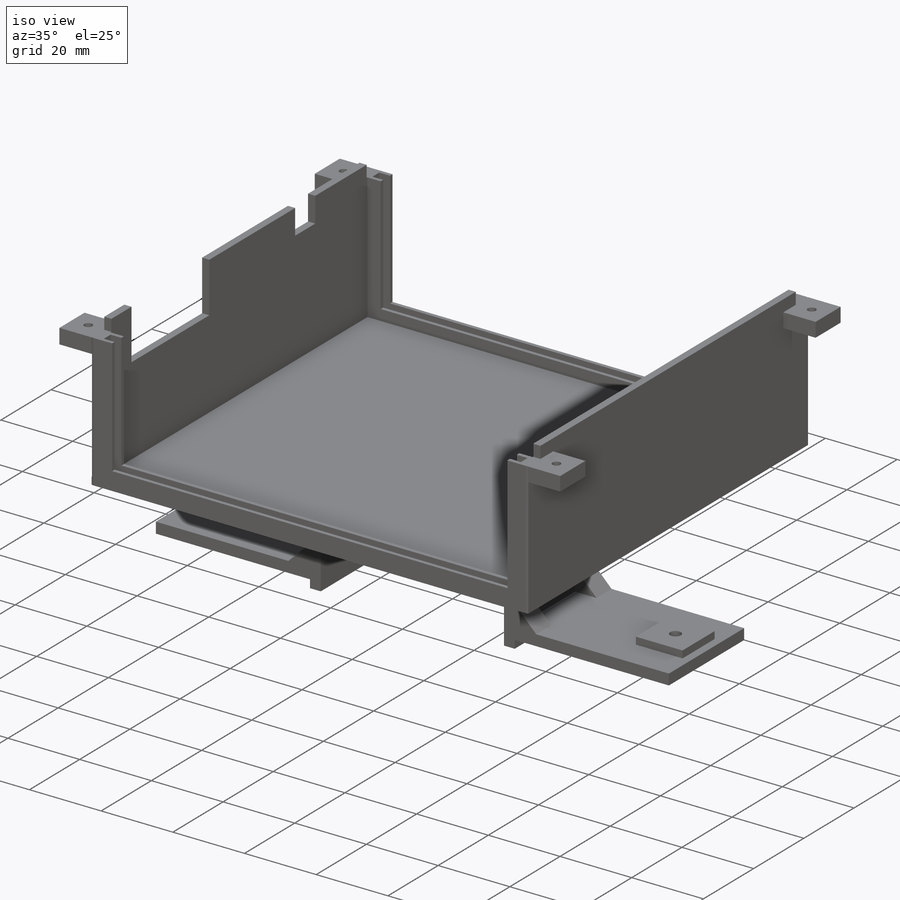
[diagram: iso view]
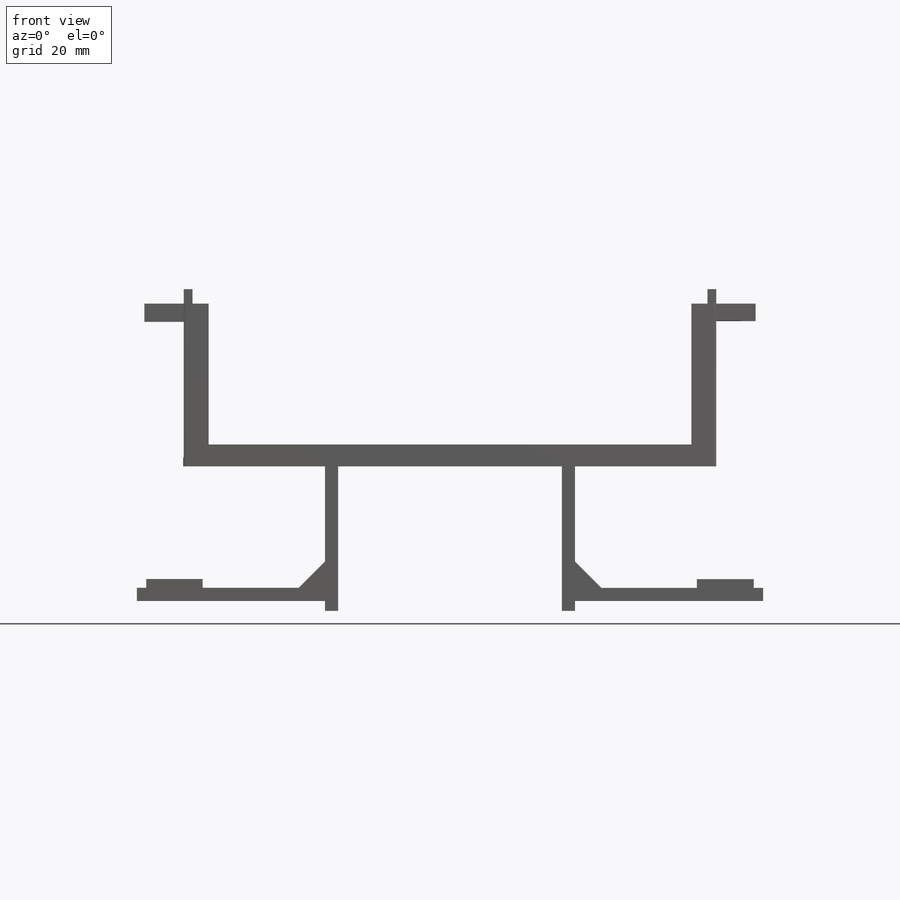
[diagram: front view]
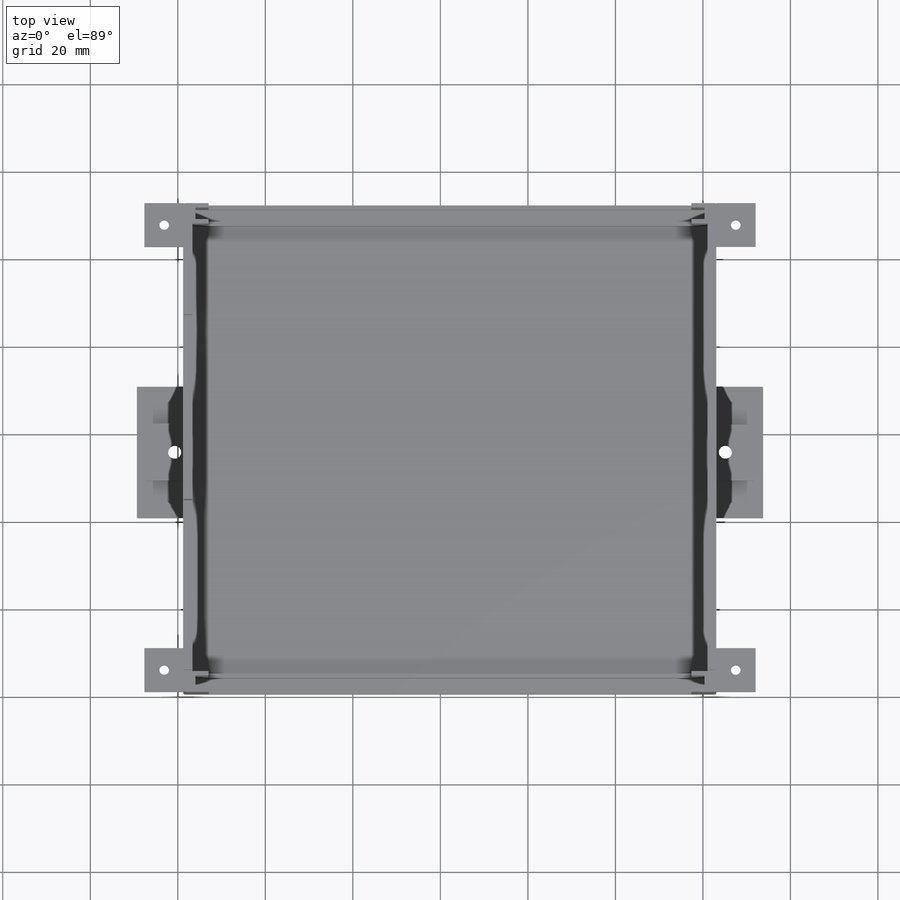
[diagram: top view]
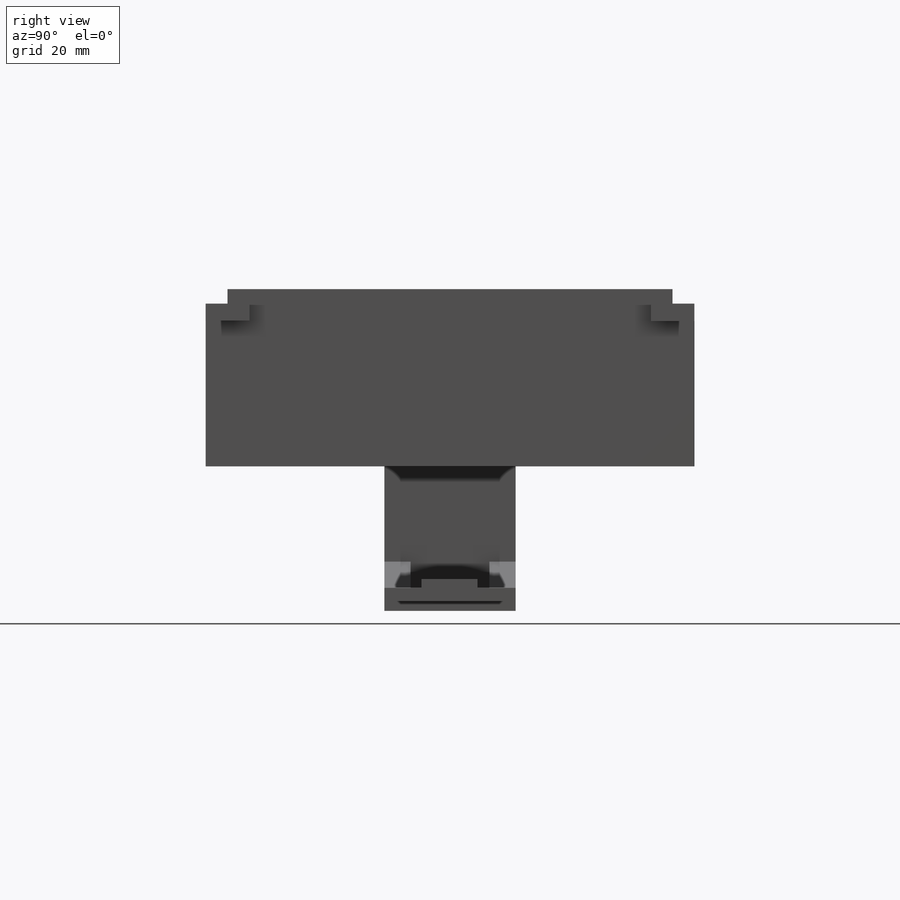
[diagram: right view]
SOLIDWORKS PART (.sldprt)
format: sldprt  version: not decoded by parser v0  size: 990,208 bytes
history: native  units: mm
features: sketch x38, extrude x19, cut_extrude x19, material x1, fillet x1 (+12 scaffold rows collapsed)
feature tree (90):
  scaffold x12  (default folders/planes/origin — collapsed)
  material  "Material <not specified>"
  sketch  "Sketch1"  dims[D1=124.4mm D2=111.7mm]
  extrude  "Boss-Extrude1"  Depth=2mm
  sketch  "Sketch2"  dims[c1.D1=2.0mm c1.D2=2.0mm c2.D1=2.0mm c2.D2=5.0mm c2.D3=1.35mm c2.D4=5.0mm c2.D5=1.35mm c2.D6=2.0mm c2.D7=5.0mm c2.D8=5.0mm c2.D9=1.0mm]
  extrude  "Boss-Extrude2"  Depth=38.5mm
  sketch  "Sketch3"  dims[D1=4.7mm D2=1.35mm D3=1.35mm]
  extrude  "Boss-Extrude3"  Depth=3mm
  sketch  "Sketch5"  dims[c1.D1=0.5mm c1.D2=0.5mm c1.D3=2.1mm c2.D2=2.5mm c2.D4=0.5mm c2.D5=1.0mm c2.D6=~2.453846mm c3.D2=~2.453846mm c4.D2=~168.973391deg c5.D2=0.0mm c5.D4=0.5mm c5.D1=1.0mm c5.D3=0.3mm c5.D6=0.5mm c6.D3=3.7mm c6.D4=2.0mm c6.D2=3.7mm c7.D4=1.0mm c7.D2=2.7mm c7.D3=2.7mm c8.D4=2.7mm c8.D5=2.7mm c8.D6=2.7mm c8.D7=1.0mm c8.D8=1.0mm c8.D9=1.0mm]
  cut_extrude  "Cut-Extrude8"  Depth=3mm
  sketch  "Sketch14"  dims[D1=4.7mm D2=1.35mm D3=1.35mm]
  extrude  "Boss-Extrude6"  Depth=3mm
  sketch  "Sketch15"  dims[c1.D1=2.7mm c1.D2=1.0mm c1.D3=3.7mm c2.D2=3.7mm c2.D4=1.0mm c3.D2=2.7mm c3.D3=2.7mm c3.D4=1.0mm c3.D5=0.5mm]
  cut_extrude  "Cut-Extrude14"  Depth=3mm
  sketch  "Sketch18"
  extrude  "Boss-Extrude7"  Depth=35.2mm
  sketch  "Sketch19"  dims[D1=5.7mm D2=5.7mm D3=5.7mm D4=5.7mm]
  extrude  "Boss-Extrude8"  Depth=32.2mm
  sketch  "Sketch20"  dims[D1=2.7mm]
  cut_extrude  "Cut-Extrude15"  Depth=3mm
  sketch  "Sketch21"  dims[D1=2.7mm]
  cut_extrude  "Cut-Extrude16"  Depth=3mm
  sketch  "Sketch24"  dims[D1=2.7mm]
  cut_extrude  "Cut-Extrude18"  Depth=3mm
  sketch  "Sketch25"  dims[D1=2.7mm]
  cut_extrude  "Cut-Extrude19"  Depth=3mm
  sketch  "Sketch30"  dims[c1.D1=31.0mm c1.D2=8.2mm c1.D3=0.0mm c2.D2=13.0mm c2.D4=14.0mm c2.D5=25.5mm c2.D6=8.0mm c2.D7=4.0mm c2.D8=3.0mm c2.D9=6.25mm c2.D10=0.775mm c2.D11=0.975mm c2.D12=0.775mm c3.D7=7.0mm]
  cut_extrude  "Cut-Extrude23"  Depth=2mm
  sketch  "Sketch31"  dims[D1=6.0mm D2=6.0mm]
  extrude  "Boss-Extrude9"  Depth=1.35mm
  fillet  "Fillet1"  Radius=2mm
  sketch  "Sketch33"  dims[D1=3.0mm]
  extrude  "Boss-Extrude11"  Depth=1.35mm
  sketch  "Sketch43"
  cut_extrude  "Cut-Extrude25"  [1 undecoded]
  sketch  "Sketch47"
  extrude  "Boss-Extrude22"  Depth=38mm
  sketch  "Sketch49"
  cut_extrude  "Cut-Extrude30"  Depth=38mm
  sketch  "Sketch51"
  cut_extrude  "Cut-Extrude33"  [1 undecoded]
  sketch  "Sketch54"  dims[D1=10.0mm D2=4.0mm D3=10.0mm D4=4.0mm]
  extrude  "Boss-Extrude23"  Depth=9mm
  sketch  "Sketch55"  dims[D1=10.0mm D2=4.0mm D3=10.0mm D4=4.0mm]
  extrude  "Boss-Extrude24"  Depth=9mm
  sketch  "Sketch56"  dims[D9=~0.874324mm D1=5.0mm D2=5.0mm D3=5.0mm D4=5.0mm D5=4.55mm D6=4.55mm D7=4.55mm D8=4.55mm]
  cut_extrude  "Cut-Extrude34"  Depth=10mm
  sketch  "Sketch57"  dims[D4=~3.134946mm D1=4.0mm D2=5.0mm D3=5.0mm]
  cut_extrude  "Cut-Extrude35"  [1 undecoded]
  sketch  "Sketch58"  dims[D1=2.25mm D2=2.25mm D3=3.0mm D4=3.0mm]
  extrude  "Boss-Extrude25"  Depth=43mm
  sketch  "Sketch59"  dims[D1=7.25mm D2=10.25mm D3=7.25mm]
  extrude  "Boss-Extrude26"  Depth=43mm
  sketch  "Sketch60"  dims[D1=6.0mm D2=6.0mm]
  sketch  "Sketch61"  dims[D1=6.0mm D2=6.0mm]
  extrude  "Boss-Extrude28"  Depth=6mm
  sketch  "Sketch62"  dims[D1=6.0mm D2=6.0mm]
  extrude  "Boss-Extrude29"  Depth=6mm
  extrude  "Boss-Extrude30"  Depth=6mm
  sketch  "Sketch63"  dims[D1=~5.659003mm D2=6.0mm]
  extrude  "Boss-Extrude31"  Depth=6mm
  sketch  "Sketch64"
  cut_extrude  "Cut-Extrude36"  [1 undecoded]
  sketch  "Sketch65"  dims[D3=15.0mm D1=15.0mm D2=34.35mm]
  cut_extrude  "Cut-Extrude37"  Depth=6mm
  sketch  "Sketch67"  dims[D3=~0.928269mm D1=7.15mm D2=1.5mm]
  cut_extrude  "Cut-Extrude39"  Depth=6mm
  sketch  "Sketch68"  dims[D1=5.0mm D2=5.0mm D3=6.5mm D4=6.5mm]
  extrude  "Boss-Extrude32"  Depth=2mm
  sketch  "Sketch69"  dims[D1=5.0mm D2=5.0mm D3=6.5mm D4=6.5mm]
  extrude  "Boss-Extrude33"  Depth=2mm
  sketch  "Sketch70"  dims[D1=~2.013718mm]
  cut_extrude  "Cut-Extrude40"  Depth=10mm
  sketch  "Sketch71"  dims[D1=~4.034418mm]
  cut_extrude  "Cut-Extrude41"  Depth=10mm
  sketch  "Sketch72"  dims[D1=~2.274675mm]
  cut_extrude  "Cut-Extrude42"  Depth=2.2mm
  sketch  "Sketch73"  dims[D1=~1.23918mm]
  cut_extrude  "Cut-Extrude43"  Depth=2.2mm
decode coverage: 67 of 77 modeling features carry decoded parameters
note: ~ marks probable driven/reference dimensions
note: 4 parameter values undecoded
summary: no parameter record found for 4 features
note: suppression state not decoded; provenance and decode notes live in map.json
